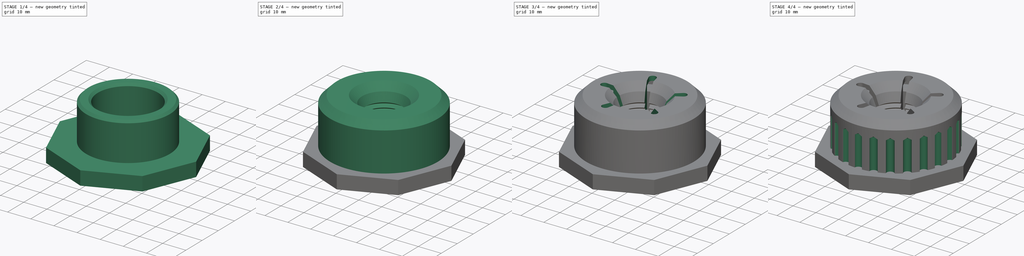
[diagram: build sequence overview — one tinted view per stage of 4, left to right]
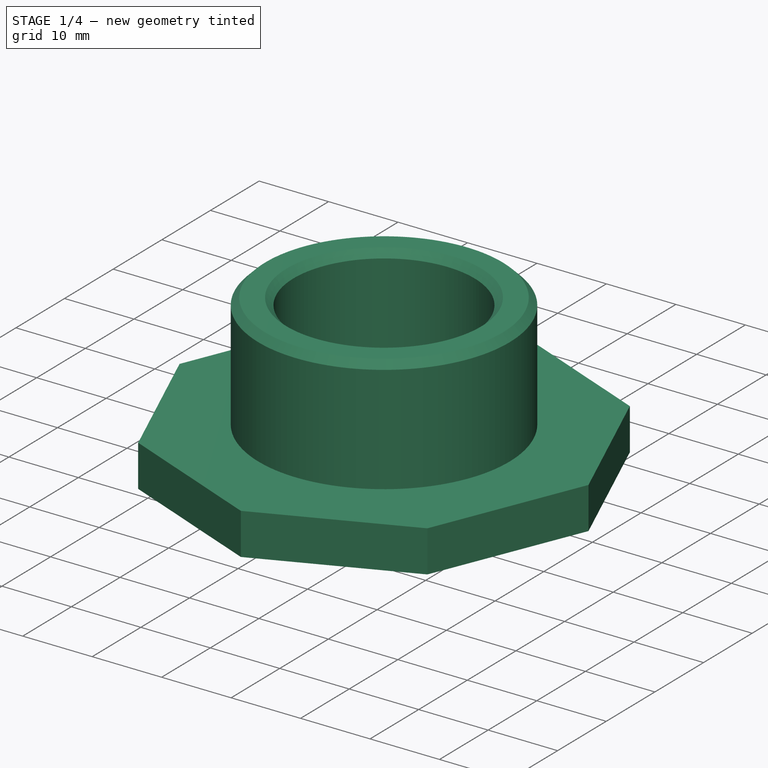
[diagram: stage 1 of 4 — iso view after this stage's code; geometry added in this stage tinted green]
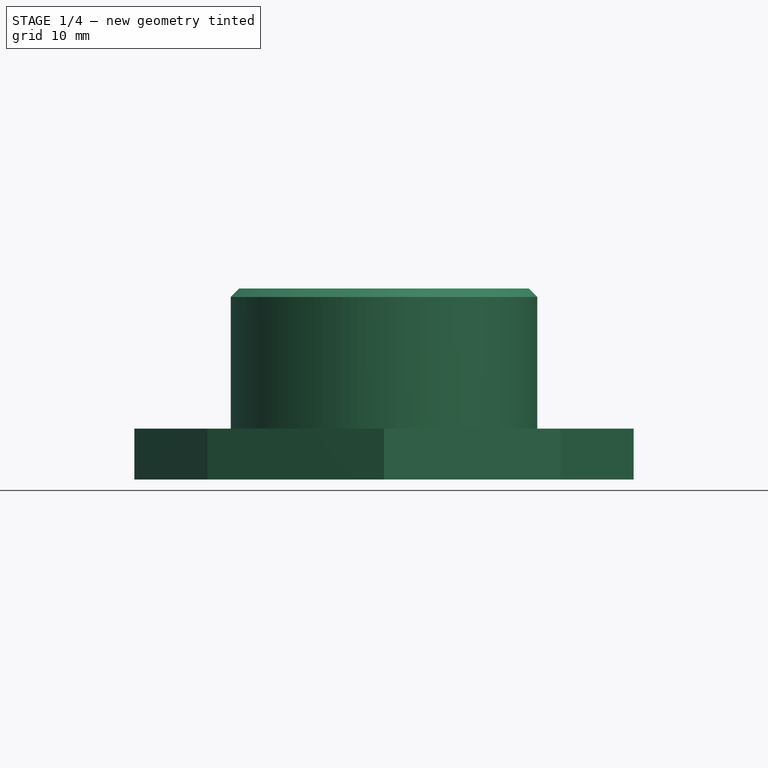
[diagram: stage 1 of 4 — front view after this stage's code; geometry added in this stage tinted green]
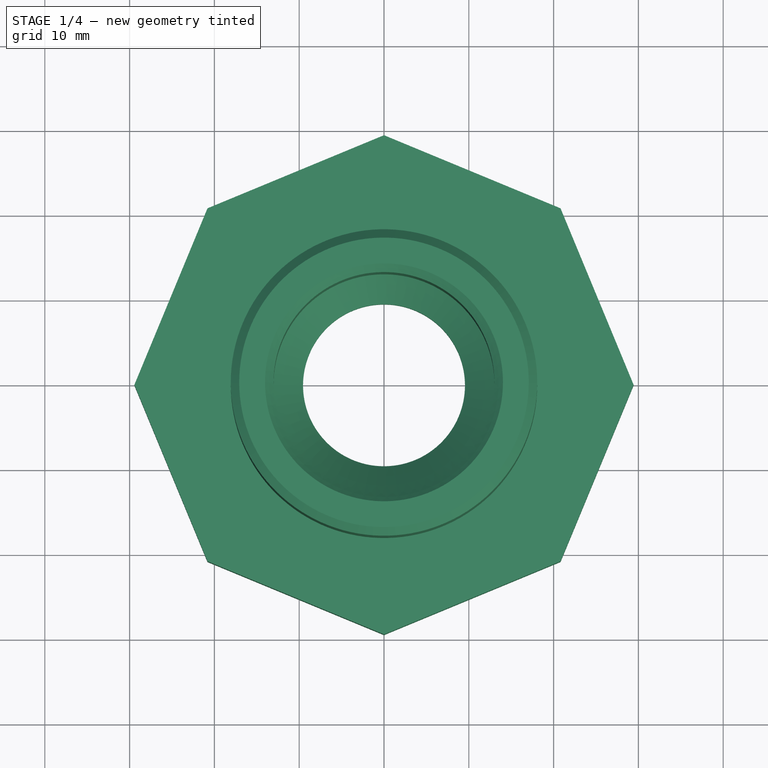
[diagram: stage 1 of 4 — top view after this stage's code; geometry added in this stage tinted green]
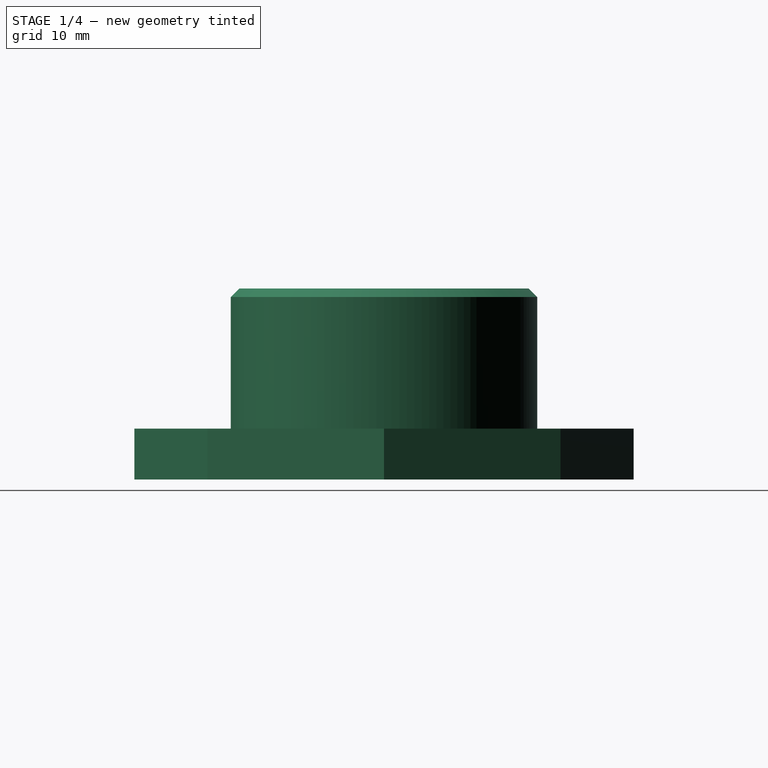
[diagram: stage 1 of 4 — right view after this stage's code; geometry added in this stage tinted green]
FCSTD DOCUMENT  (FreeCAD 2023.131R26244 +5365 (Git))
Label: Hose Clamps2
License: All rights reserved
LicenseURL: http://en.wikipedia.org/wiki/All_rights_reserved
objects: Sketcher::SketchObject×7, PartDesign::Revolution×2, PartDesign::PolarPattern×2, PartDesign::Body×2, Spreadsheet::Sheet×1, PartDesign::Pocket×1, PartDesign::Pad×1, PartDesign::Hole×1, PartDesign::SubtractiveHelix×1, PartDesign::AdditiveHelix×1
note: 43 computed .brp shape members not serialized (recipe doc carries the construction recipe); baked Part::Feature solids carry a one-line shape summary decoded from their .brp

FEATURE [Sketcher::SketchObject] Sketch002
  ArcFitTolerance = 1e-06
  AttachmentSupport = -> [XZ_Plane001]
  ExternalBSplineMaxDegree = 5
  ExternalBSplineTolerance = 0.0001
  FullyConstrained = true
  InternalTolerance = 1e-06
  InvalidShape = false
  MakeInternals = false
  MapMode = 5
  Placement = pos=(0,0,0) rot=(1,0,0;1.5708rad)
  Support = -> [XZ_Plane001]
  TreeRank = 27
  ValidateShape = true
  expr: Constraints[10] = <<Parameters>>.middle_thickness - 2 * <<Parameters>>.tolerance
  expr: Constraints[12] = <<Parameters>>.chamfer_depth + <<Parameters>>.thread_depth + <<Parameters>>.tolerance
  expr: Constraints[13] = <<Parameters>>.thickness * 3
  expr: Constraints[14] = <<Parameters>>.cap_height - <<Parameters>>.chamfer_depth - <<Parameters>>.tolerance
  expr: Constraints[19] = <<Parameters>>.outer_diameter / 2
  expr: Constraints[21] = <<Parameters>>.cap_outer_diameter / 2
  expr: Constraints[27] = <<Parameters>>.middle_thickness / 6
  expr: Constraints[28] = <<Parameters>>.middle_thickness / 6
  expr: Constraints[29] = <<Parameters>>.middle_thickness - 2 * <<Parameters>>.tolerance - <<Parameters>>.middle_thickness / 3
  sketch-geometry (10):
    g0: LineSegment StartX=-9.55 StartY=-6 StartZ=0 EndX=-23.55 EndY=-6 EndZ=0
    g1: LineSegment StartX=-13.0275 StartY=0 StartZ=0 EndX=-13.0275 EndY=15.5225 EndZ=0
    g2: LineSegment StartX=-14.0275 StartY=16.5225 StartZ=0 EndX=-17.0725 EndY=16.5225 EndZ=0
    g3: LineSegment StartX=-18.0725 StartY=15.5225 StartZ=0 EndX=-18.0725 EndY=0 EndZ=0
    g4: LineSegment StartX=-18.0725 StartY=0 StartZ=0 EndX=-23.55 EndY=0 EndZ=0
    g5: LineSegment StartX=-23.55 StartY=0 StartZ=0 EndX=-23.55 EndY=-6 EndZ=0
    g6: LineSegment StartX=-13.0275 StartY=0 StartZ=0 EndX=-9.55 EndY=-3.4775 EndZ=0
    g7: LineSegment StartX=-9.55 StartY=-3.4775 StartZ=0 EndX=-9.55 EndY=-6 EndZ=0
    g8: LineSegment StartX=-18.0725 StartY=15.5225 StartZ=0 EndX=-17.0725 EndY=16.5225 EndZ=0
    g9: LineSegment StartX=-13.0275 StartY=15.5225 StartZ=0 EndX=-14.0275 EndY=16.5225 EndZ=0
  constraints (30):
    c: Horizontal(g0)
    c: Vertical(g1)
    c: Horizontal(g2)
    c: PointOnObject(g3,g-1)
    c: Vertical(g3)
    c: Coincident(g4,g3)
    c: PointOnObject(g4,g-1)
    c: Coincident(g5,g4)
    c: Vertical(g5)
    c: Coincident(g0,g5)
    c: DistanceX(g3,g1) = 5.045
    c: Equal(g3,g1)
    c: DistanceX(g4,g3) = 5.4775
    c: DistanceY(g0,g4) = 6
    c: DistanceY(g-1,g2) = 16.5225
    c: Coincident(g6,g1)
    c: Coincident(g7,g6)
    c: Coincident(g7,g0)
    c: Vertical(g7)
    c: DistanceX(g0,g-1) = 9.55
    c: Angle(g6,g7) = 2.35619
    c: DistanceX(g0,g-1) = 23.55
    c: PointOnObject(g1,g-1)
    c: Coincident(g8,g3)
    c: Coincident(g8,g2)
    c: Coincident(g9,g1)
    c: Coincident(g9,g2)
    c: DistanceX(g2,g1) = 1
    c: DistanceY(g3,g2) = 1
    c: DistanceX(g2,g2) = 3.045
FEATURE [PartDesign::Revolution] Revolution001
  AddSubType = 0
  Angle = 360
  Axis = (0,-2e-16,1)
  Base = (0,0,0)
  ClaimChildren = false
  Fit = 0
  FitJoin = 0
  InnerFit = 0
  InnerFitJoin = 0
  InvalidShape = false
  Linearize = true
  NewSolid = false
  Profile = -> Sketch002
  ReferenceAxis = -> Sketch002 [V_Axis]
  Suppress = false
  TreeRank = 28
  ValidateShape = true
  _ProfileBasedVersion = 1
FEATURE [Sketcher::SketchObject] Sketch003
  ArcFitTolerance = 1e-06
  AttachmentSupport = -> [Revolution001]
  ExternalBSplineMaxDegree = 5
  ExternalBSplineTolerance = 0.0001
  FullyConstrained = true
  InternalTolerance = 1e-06
  InvalidShape = false
  MakeInternals = false
  MapMode = 5
  Placement = pos=(0,1.3e-15,-6) rot=(1,0,0;3.14159rad)
  Support = -> [Revolution001]
  TreeRank = 29
  ValidateShape = true
  expr: Constraints[25] = <<Parameters>>.cap_outer_diameter * 1.25
  expr: Constraints[27] = <<Parameters>>.outer_diameter * 2
  sketch-geometry (10):
    g0: LineSegment StartX=0 StartY=29.4375 StartZ=0 EndX=-20.8155 EndY=20.8155 EndZ=0
    g1: LineSegment StartX=-20.8155 StartY=20.8155 StartZ=0 EndX=-29.4375 EndY=-7.1e-15 EndZ=0
    g2: LineSegment StartX=-29.4375 StartY=-6.9e-15 StartZ=0 EndX=-20.8155 EndY=-20.8155 EndZ=0
    g3: LineSegment StartX=-20.8155 StartY=-20.8155 StartZ=0 EndX=7.1e-15 EndY=-29.4375 EndZ=0
    g4: LineSegment StartX=5.6e-15 StartY=-29.4375 StartZ=0 EndX=20.8155 EndY=-20.8155 EndZ=0
    g5: LineSegment StartX=20.8155 StartY=-20.8155 StartZ=0 EndX=29.4375 EndY=0 EndZ=0
    g6: LineSegment StartX=29.4375 StartY=7e-16 StartZ=0 EndX=20.8155 EndY=20.8155 EndZ=0
    g7: LineSegment StartX=20.8155 StartY=20.8155 StartZ=0 EndX=0 EndY=29.4375 EndZ=0
    g8: Circle [constr] CenterX=0 CenterY=0 CenterZ=0 NormalX=0 NormalY=0 NormalZ=1 AngleXU=0 Radius=29.4375
    g9: Circle CenterX=0 CenterY=0 CenterZ=0 NormalX=0 NormalY=0 NormalZ=1 AngleXU=0 Radius=19.1
  constraints (22):
    c: Coincident(g0,g1)
    c: Coincident(g1,g2)
    c: Coincident(g2,g3)
    c: Coincident(g3,g4)
    c: Coincident(g4,g5)
    c: Coincident(g5,g6)
    c: Coincident(g6,g7)
    c: Coincident(g7,g0)
    c: Equal(g0, g1-g7) x7
    c: PointOnObject(g0,g8)
    c: PointOnObject(g1,g8)
    c: PointOnObject(g2,g8)
    c: PointOnObject(g3,g8)
    c: PointOnObject(g4,g8)
    c: PointOnObject(g5,g8)
    c: PointOnObject(g6,g8)
    c: PointOnObject(g7,g8)
    c: Coincident(g8,g-1)
    c: PointOnObject(g7,g-2)
    c: Diameter(g8) = 58.875
    c: Coincident(g9,g8)
    c: Diameter(g9) = 38.2
FEATURE [PartDesign::Pad] Pad
  AddSubType = 0
  AlongSketchNormal = false
  AutoTaperInnerAngle = true
  BaseFeature = -> Revolution001
  CheckUpToFaceLimits = true
  ClaimChildren = false
  Direction = (0,2e-16,-1)
  Fit = 0
  FitJoin = 0
  InnerFit = 0
  InnerFitJoin = 0
  InvalidShape = false
  Length = 6
  Length2 = 100
  Linearize = true
  NewSolid = false
  Profile = -> Sketch003
  Reversed = true
  Suppress = false
  TaperInnerAngle = 0
  TaperInnerAngleRev = 0
  TreeRank = 30
  Type = 0
  ValidateShape = true
  _ProfileBasedVersion = 1
  expr: Length = <<Parameters>>.thickness * 3
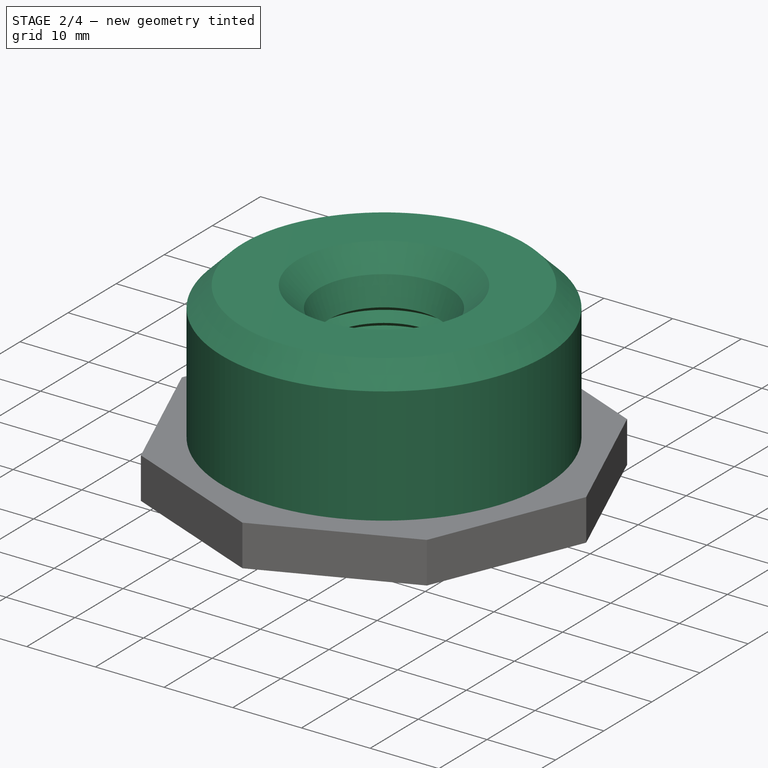
[diagram: stage 2 of 4 — iso view after this stage's code; geometry added in this stage tinted green]
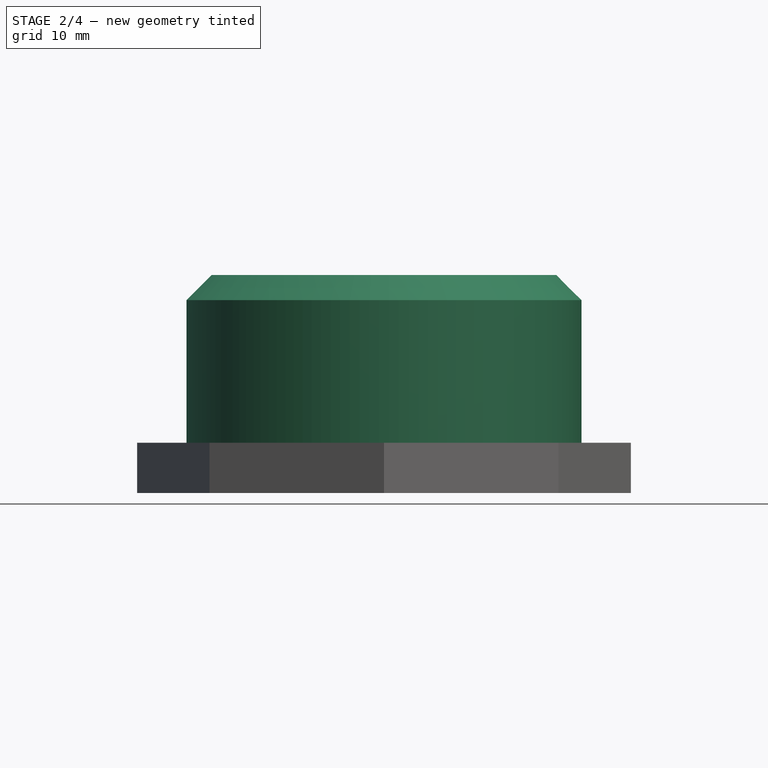
[diagram: stage 2 of 4 — front view after this stage's code; geometry added in this stage tinted green]
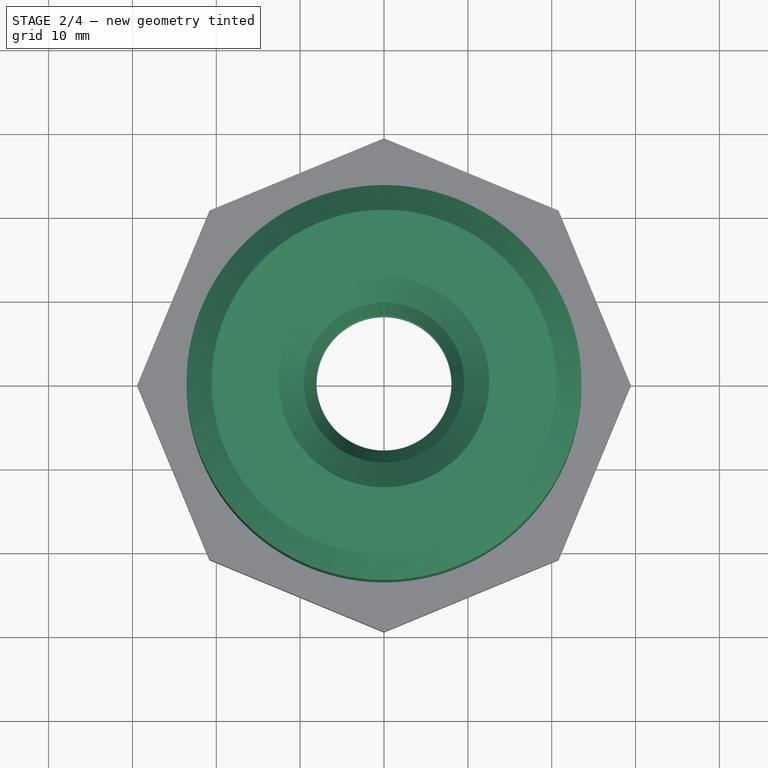
[diagram: stage 2 of 4 — top view after this stage's code; geometry added in this stage tinted green]
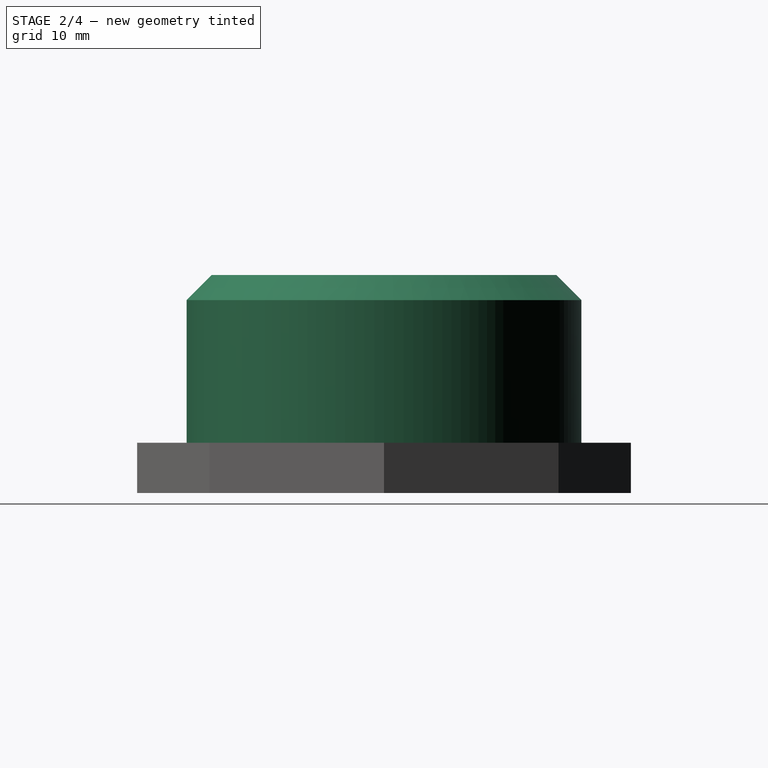
[diagram: stage 2 of 4 — right view after this stage's code; geometry added in this stage tinted green]
FEATURE [Spreadsheet::Sheet] Spreadsheet  label="Parameters"
  PythonMode = false
  ShowCells = 0
  TreeRank = 1
  cells = A1=Outer Diameter; B1(outer_diameter)=19.1; D1=The outer diameter of the tube; A2=Thickness; B2(thickness)=2; D2=Minimum thickness of parts; A4=Tolerance; B4(tolerance)==max(0.25, outer_diameter / 40); D4=The amount of space between parts that slide between each other.; A5=Cap Height; B5(cap_height)==ceil(outer_diameter); D5=How high the cap is. Higer caps can provide more clamping.; A6=Middle Thickness; B6(middle_thickness)==max(thickness, round(outer_diameter / 3)); D6=The thickness of the gap in the cap that allows the base to clamp onto the tube.; A7=Chamfer Angle; B7(chamfer_angle)=135; D7=The angle to use to create chamfers.; A8=Chamfer Depth; B8(chamfer_depth)==max(1, round(outer_diameter / 6)); D8=How big the chamfer will be.; A9=Tooth Depth; B9(tooth_depth)==round(outer_diameter / 6) / 2; D9=The depth of the teeth that grips the outside surface of the tube.; A10=Thread Pitch; B10(thread_pitch)==thread_depth * 1.25; D10=These are trapezoidal threads.; A11=Thread Angle; B11(thread_angle)=15; D11=The angle of the size of the trapezoid.; A12=Thread Depth; B12(thread_depth)==max(1.5, cap_height / 10); D12=How deep the threads mesh.; A13=Thread Clearance; B13(thread_clearance)==thread_depth / 10; D13=The amount of clearance between mating threads.; A14=Thread Height; B14(thread_length)==cap_height / 3 * 2; D14=The total length of the threading; A15=Cap Outer Diameter; B15(cap_outer_diameter)==outer_diameter + 4 * chamfer_depth + 2 * middle_thickness + 2 * thread_depth; D15=Calcualted based on the above specs.; B18=Tolerance; C18=Outer Diameter; D18=Cap Height; E18=Mid Thickness; F18=Chamfer Depth; G18=Tooth Depth; H18=Thread Pitch; I18=Thread Depth; J18=Thread Clearance; K18=Thread Height; A19=1/2" ID Tube; B19=0.5; C19=19.1; D19=20; E19=6; F19=3; G19=1.5; H19=2.5; I19=2; J19=0.2; K19=12; A20=3/8" ID Tube; B20=0.5; C20=13.025; D20=14; E20=4; F20=2; G20=1; H20=1.75; I20=1.4; J20=0.14; K20=7; A21=1/4" ID Tube; B21=0.5; C21=10.35; D21=11; E21=3; F21=2; G21=1; H21=1.38; I21=1.1; J21=0.11; K21=5.5; A22=Calculated; B22==max(0.25, C22 / 40); C22=4; D22==ceil(C22); E22==max(thickness, round(C22 / 3)); F22==max(1, round(C22 / 6)); G22==round(C22 / 6) / 2; H22==I22 * 1.25; I22==max(1.5, D22 / 10); J22==I22 / 10; K22==D22 / 2
FEATURE [Sketcher::SketchObject] Sketch
  ArcFitTolerance = 1e-06
  AttachmentSupport = -> [XZ_Plane]
  ExternalBSplineMaxDegree = 5
  ExternalBSplineTolerance = 0.0001
  FullyConstrained = true
  InternalTolerance = 1e-06
  InvalidShape = false
  MakeInternals = false
  MapMode = 5
  Placement = pos=(0,0,0) rot=(1,0,0;1.5708rad)
  Support = -> [XZ_Plane]
  TreeRank = 12
  ValidateShape = true
  expr: Constraints[13] = <<Parameters>>.chamfer_depth
  expr: Constraints[14] = <<Parameters>>.outer_diameter / 2
  expr: Constraints[16] = <<Parameters>>.thickness
  expr: Constraints[17] = <<Parameters>>.middle_thickness
  expr: Constraints[1] = <<Parameters>>.chamfer_depth
  expr: Constraints[23] = <<Parameters>>.thread_depth
  expr: Constraints[24] = <<Parameters>>.chamfer_angle
  expr: Constraints[25] = <<Parameters>>.chamfer_angle
  expr: Constraints[2] = <<Parameters>>.cap_height
  expr: Constraints[35] = <<Parameters>>.chamfer_angle
  expr: Constraints[36] = <<Parameters>>.tooth_depth
  expr: Constraints[3] = <<Parameters>>.chamfer_depth
  expr: Constraints[42] = <<Parameters>>.tooth_depth
  expr: Constraints[43] = <<Parameters>>.tooth_depth
  expr: Constraints[44] = <<Parameters>>.tooth_depth
  expr: Constraints[45] = <<Parameters>>.tooth_depth
  expr: Constraints[55] = <<Parameters>>.chamfer_angle
  expr: Constraints[79] = <<Parameters>>.tooth_depth
  expr: Constraints[80] = <<Parameters>>.tooth_depth
  expr: Constraints[81] = <<Parameters>>.tooth_depth
  expr: Constraints[82] = <<Parameters>>.tooth_depth
  expr: Constraints[83] = <<Parameters>>.cap_height / 3 * 2
  expr: Constraints[84] = <<Parameters>>.tooth_depth
  expr: Constraints[87] = <<Parameters>>.tooth_depth
  expr: Constraints[9] = <<Parameters>>.chamfer_depth
  sketch-geometry (30):
    g0: LineSegment StartX=-23.55 StartY=17 StartZ=0 EndX=-20.55 EndY=20 EndZ=0
    g1: LineSegment StartX=-21.55 StartY=0 StartZ=0 EndX=-18.55 EndY=3 EndZ=0
    g2: LineSegment StartX=-18.55 StartY=3 StartZ=0 EndX=-18.55 EndY=18 EndZ=0
    g3: LineSegment StartX=-12.55 StartY=18 StartZ=0 EndX=-12.55 EndY=3 EndZ=0
    g4: LineSegment StartX=-12.55 StartY=3 StartZ=0 EndX=-9.55 EndY=0 EndZ=0
    g5: LineSegment StartX=-9.55 StartY=17 StartZ=0 EndX=-12.55 EndY=20 EndZ=0
    g6: LineSegment StartX=-12.55 StartY=20 StartZ=0 EndX=-20.55 EndY=20 EndZ=0
    g7: LineSegment StartX=-18.55 StartY=18 StartZ=0 EndX=-12.55 EndY=18 EndZ=0
    g8: LineSegment StartX=-21.55 StartY=0 StartZ=0 EndX=-23.55 EndY=0 EndZ=0
    g9: LineSegment StartX=-23.55 StartY=0 StartZ=0 EndX=-23.55 EndY=17 EndZ=0
    g10: LineSegment StartX=-9.55 StartY=0 StartZ=0 EndX=-8.05 EndY=1.02564 EndZ=0
    g11: LineSegment StartX=-8.05 StartY=1.02564 StartZ=0 EndX=-9.55 EndY=-2e-16 EndZ=0
    g12: LineSegment StartX=-9.55 StartY=-3e-16 StartZ=0 EndX=-8.05 EndY=1.02564 EndZ=0
    g13: LineSegment StartX=-8.05 StartY=1.02564 StartZ=0 EndX=-9.55 EndY=2.05128 EndZ=0
    g14: LineSegment StartX=-9.55 StartY=2.05128 StartZ=0 EndX=-8.05 EndY=3.07692 EndZ=0
    g15: LineSegment StartX=-8.05 StartY=3.07692 StartZ=0 EndX=-9.55 EndY=4.10256 EndZ=0
    g16: LineSegment StartX=-9.55 StartY=4.10256 StartZ=0 EndX=-8.05 EndY=5.12821 EndZ=0
    g17: LineSegment StartX=-8.05 StartY=5.12821 StartZ=0 EndX=-9.55 EndY=6.15385 EndZ=0
    g18: LineSegment StartX=-9.55 StartY=6.15385 StartZ=0 EndX=-8.05 EndY=7.17949 EndZ=0
    g19: LineSegment StartX=-8.05 StartY=7.17949 StartZ=0 EndX=-9.55 EndY=8.20513 EndZ=0
    g20: LineSegment StartX=-9.55 StartY=8.20513 StartZ=0 EndX=-8.05 EndY=9.23077 EndZ=0
    g21: LineSegment StartX=-8.05 StartY=9.23077 StartZ=0 EndX=-9.55 EndY=10.2564 EndZ=0
    g22: LineSegment StartX=-9.55 StartY=10.2564 StartZ=0 EndX=-8.05 EndY=11.2821 EndZ=0
    g23: LineSegment StartX=-8.05 StartY=11.2821 StartZ=0 EndX=-9.55 EndY=12.3077 EndZ=0
    g24: LineSegment StartX=-9.55 StartY=12.3077 StartZ=0 EndX=-8.05 EndY=13.3333 EndZ=0
    g25: LineSegment StartX=-8.05 StartY=13.3333 StartZ=0 EndX=-9.55 EndY=12.3077 EndZ=0
    g26: LineSegment StartX=-9.55 StartY=12.3077 StartZ=0 EndX=-8.05 EndY=11.2821 EndZ=0
    g27: LineSegment StartX=-8.05 StartY=11.2821 StartZ=0 EndX=-9.55 EndY=12.3077 EndZ=0
    g28: LineSegment StartX=-9.55 StartY=12.3077 StartZ=0 EndX=-8.05 EndY=13.3333 EndZ=0
    g29: LineSegment StartX=-9.55 StartY=17 StartZ=0 EndX=-8.05 EndY=13.3333 EndZ=0
  constraints (84):
    c: PointOnObject(g1,g-1)
    c: DistanceY(g0,g0) = 3
    c: DistanceY(g-1,g0) = 20
    c: DistanceY(g1,g1) = 3
    c: Coincident(g2,g1)
    c: Vertical(g2)
    c: Vertical(g3)
    c: Coincident(g4,g3)
    c: PointOnObject(g4,g-1)
    c: DistanceY(g4,g3) = 3
    c: Coincident(g6,g5)
    c: Coincident(g6,g0)
    c: Horizontal(g6)
    c: DistanceY(g5,g5) = 3
    c: DistanceX(g4,g-1) = 9.55
    c: Horizontal(g7)
    c: DistanceY(g7,g5) = 2
    c: DistanceX(g1,g3) = 6
    c: Coincident(g8,g1)
    c: Horizontal(g8)
    c: Coincident(g9,g8)
    c: Vertical(g9)
    c: Coincident(g0,g9)
    c: DistanceX(g8,g1) = 2
    c: Angle(g9,g0) = 2.35619
    c: Angle(g2,g1) = 2.35619
    c: Coincident(g11,g10)
    c: Coincident(g12,g11)
    c: Coincident(g13,g12)
    c: Coincident(g14,g13)
    c: Coincident(g15,g14)
    c: Coincident(g16,g15)
    c: Coincident(g17,g16)
    c: Coincident(g18,g17)
    c: Coincident(g19,g18)
    c: Angle(g6,g5) = 2.35619
    c: DistanceX(g19,g18) = 1.5
    c: DistanceX(g5,g4) = 0
    c: DistanceX(g17,g19) = 0
    c: DistanceX(g17,g15) = 0
    c: DistanceX(g15,g13) = 0
    c: DistanceX(g13,g11) = 0
    c: DistanceX(g17,g16) = 1.5
    c: DistanceX(g15,g14) = 1.5
    c: DistanceX(g13,g12) = 1.5
    c: DistanceX(g11,g10) = 1.5
    c: Equal(g19,g18)
    c: Equal(g19,g17)
    c: Equal(g19,g16)
    c: Equal(g19,g15)
    c: Equal(g19,g14)
    c: Equal(g19,g13)
    c: Equal(g19,g12)
    c: Equal(g19,g11)
    c: Equal(g19,g10)
    c: Angle(g4,g3) = 2.35619
    c: Coincident(g10,g4)
    c: Coincident(g20,g19)
    c: Coincident(g21,g20)
    c: Coincident(g22,g21)
    c: Coincident(g23,g22)
    c: Coincident(g24,g23)
    c: Coincident(g25,g24)
    c: Coincident(g26,g25)
    c: Coincident(g27,g26)
    c: Coincident(g28,g27)
    c: Equal(g21, g22-g28) x7
    c: Equal(g21,g20)
    c: Equal(g20,g19)
    c: DistanceX(g19,g21) = 0
    c: DistanceX(g21,g23) = 0
    c: DistanceX(g23,g25) = 0
    c: DistanceX(g27,g25) = 0
    c: DistanceX(g27,g26) = 1.5
    c: DistanceX(g25,g24) = 1.5
    c: DistanceX(g23,g22) = 1.5
    c: DistanceX(g21,g20) = 1.5
    c: DistanceY(g-1,g28) = 13.3333
    c: DistanceX(g27,g28) = 1.5
    c: Coincident(g29,g5)
    c: Coincident(g29,g28)
    c: DistanceX(g4,g10) = 1.5
    c: Coincident(g7,g2)
    c: Coincident(g7,g3)
FEATURE [PartDesign::Revolution] Revolution
  AddSubType = 0
  Angle = 360
  Axis = (0,-2e-16,1)
  Base = (0,0,0)
  ClaimChildren = false
  Fit = 0
  FitJoin = 0
  InnerFit = 0
  InnerFitJoin = 0
  InvalidShape = false
  Linearize = true
  NewSolid = false
  Profile = -> Sketch
  ReferenceAxis = -> Sketch [V_Axis]
  Suppress = false
  TreeRank = 13
  ValidateShape = true
  _ProfileBasedVersion = 1
FEATURE [PartDesign::Body] Body  label="Cap"
  AutoGroupSolids = false
  ClaimAllChildren = false
  ExportMode = 0
  Group = -> [Sketch,Revolution,Sketch001,Pocket,PolarPattern,Sketch004,Hole,PolarPattern001,Sketch005,Helix]
  InvalidShape = false
  Origin = -> Origin
  Tip = -> Helix
  TreeRank = 11
  ValidateShape = true
  _ExportChildren = -> [Revolution,Pocket,PolarPattern,Hole,PolarPattern001,Helix]
  _GroupVersion = 1
FEATURE [Sketcher::SketchObject] Sketch006
  ArcFitTolerance = 1e-06
  AttachmentSupport = -> [XZ_Plane001]
  ExternalBSplineMaxDegree = 5
  ExternalBSplineTolerance = 0.0001
  FullyConstrained = true
  InternalTolerance = 1e-06
  InvalidShape = false
  MakeInternals = false
  MapMode = 5
  Placement = pos=(0,0,0) rot=(1,0,0;1.5708rad)
  Support = -> [XZ_Plane001]
  TreeRank = 36
  ValidateShape = true
  expr: Constraints[10] = 90 - <<Parameters>>.thread_angle
  expr: Constraints[11] = 90 - <<Parameters>>.thread_angle
  expr: Constraints[3] = <<Parameters>>.thread_pitch - <<Parameters>>.thread_clearance
  expr: Constraints[4] = <<Parameters>>.thread_depth - <<Parameters>>.thread_clearance
  expr: Constraints[5] = <<Parameters>>.outer_diameter / 2 + <<Parameters>>.middle_thickness + <<Parameters>>.chamfer_depth - 2 * <<Parameters>>.tolerance - 0.1
  expr: Constraints[6] = <<Parameters>>.thread_pitch + <<Parameters>>.thread_clearance / 2
  expr: Constraints[7] = <<Parameters>>.thread_depth - <<Parameters>>.thread_clearance
  sketch-geometry (4):
    g0: LineSegment StartX=-17.495 StartY=4.9 StartZ=0 EndX=-17.495 EndY=2.6 EndZ=0
    g1: LineSegment StartX=-17.495 StartY=2.6 StartZ=0 EndX=-19.295 EndY=3.08231 EndZ=0
    g2: LineSegment StartX=-17.495 StartY=4.9 StartZ=0 EndX=-19.295 EndY=4.41769 EndZ=0
    g3: LineSegment StartX=-19.295 StartY=4.41769 StartZ=0 EndX=-19.295 EndY=3.08231 EndZ=0
  constraints (12):
    c: Vertical(g0)
    c: Coincident(g1,g0)
    c: Coincident(g2,g0)
    c: DistanceY(g0,g0) = 2.3
    c: DistanceX(g2,g0) = 1.8
    c: DistanceX(g0,g-1) = 17.495
    c: DistanceY(g-1,g0) = 2.6
    c: DistanceX(g1,g0) = 1.8
    c: Coincident(g3,g2)
    c: Coincident(g3,g1)
    c: Angle(g0,g1) = 1.309
    c: Angle(g2,g0) = 1.309
FEATURE [PartDesign::AdditiveHelix] Helix001
  AddSubType = 0
  Angle = 0
  Axis = (0,-2e-16,1)
  Base = (0,0,0)
  BaseFeature = -> Pad
  ClaimChildren = false
  Fit = 0
  FitJoin = 0
  Growth = 0
  HasBeenEdited = true
  Height = 5
  InnerFit = 0
  InnerFitJoin = 0
  InvalidShape = false
  LeftHanded = false
  Linearize = true
  Mode = 1
  NewSolid = false
  Outside = false
  Pitch = 5
  Profile = -> Sketch006
  ReferenceAxis = -> Sketch006 [V_Axis]
  Suppress = false
  TreeRank = 37
  Turns = 1
  ValidateShape = true
  _ProfileBasedVersion = 1
  expr: Height = <<Parameters>>.thread_length / 2.5
  expr: Pitch = <<Parameters>>.thread_pitch * 2
FEATURE [PartDesign::Body] Body001  label="Base"
  AutoGroupSolids = false
  ClaimAllChildren = false
  ExportMode = 0
  Group = -> [Sketch002,Revolution001,Sketch003,Pad,Sketch006,Helix001]
  InvalidShape = false
  Origin = -> Origin001
  Tip = -> Helix001
  TreeRank = 26
  ValidateShape = true
  _ExportChildren = -> [Revolution001,Pad,Helix001]
  _GroupVersion = 1
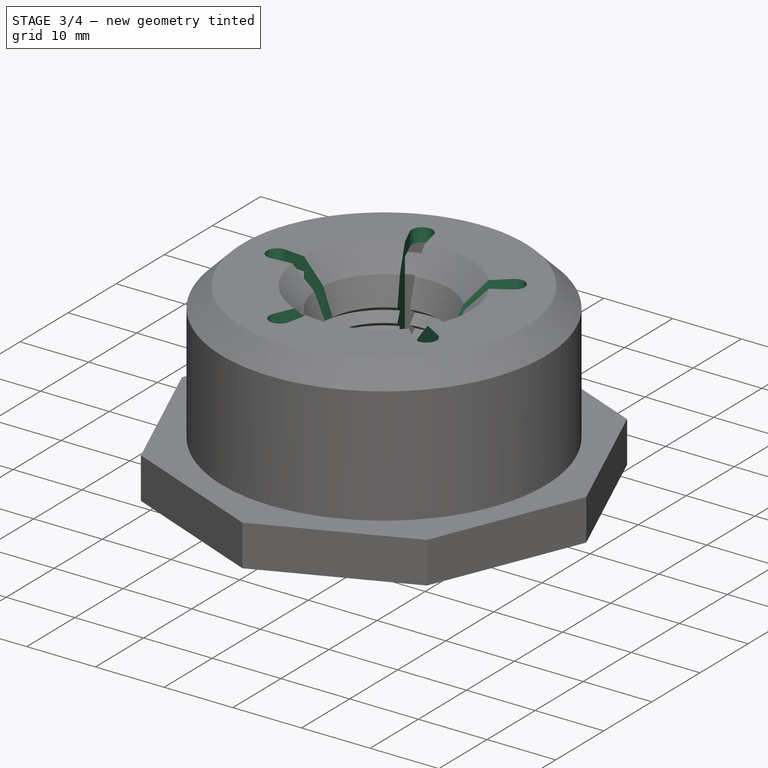
[diagram: stage 3 of 4 — iso view after this stage's code; geometry added in this stage tinted green]
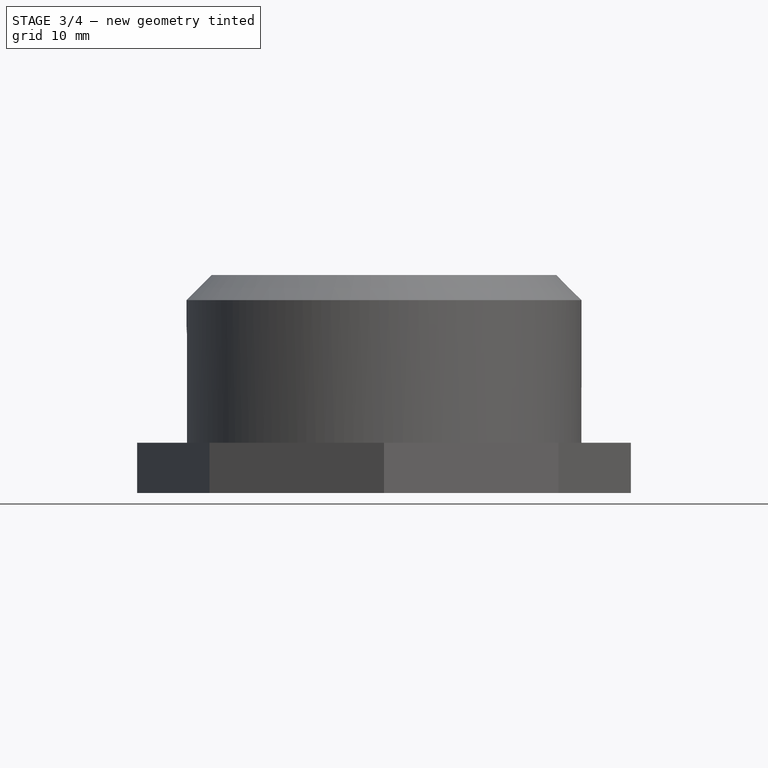
[diagram: stage 3 of 4 — front view after this stage's code; geometry added in this stage tinted green]
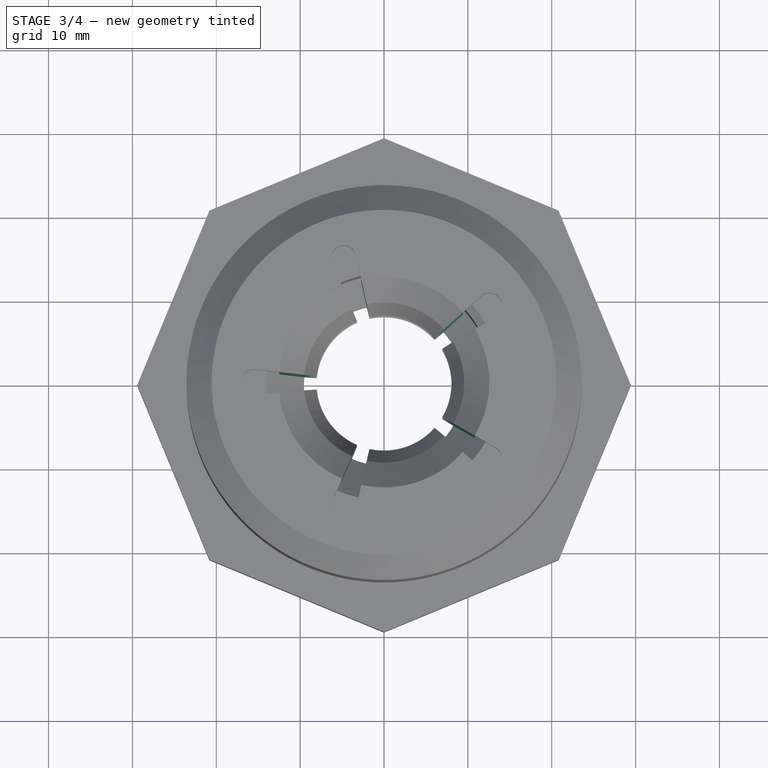
[diagram: stage 3 of 4 — top view after this stage's code; geometry added in this stage tinted green]
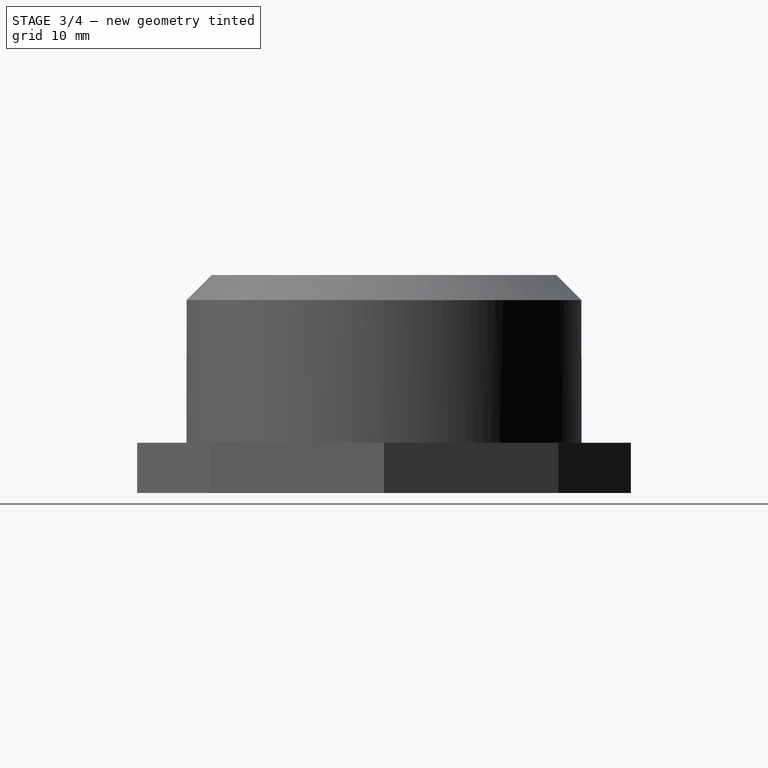
[diagram: stage 3 of 4 — right view after this stage's code; geometry added in this stage tinted green]
FEATURE [Sketcher::SketchObject] Sketch001
  ArcFitTolerance = 1e-06
  AttachmentSupport = -> [XY_Plane001]
  ExternalBSplineMaxDegree = 5
  ExternalBSplineTolerance = 0.0001
  FullyConstrained = true
  InternalTolerance = 1e-06
  InvalidShape = false
  MakeInternals = false
  MapMode = 5
  Support = -> [XY_Plane001]
  TreeRank = 14
  ValidateShape = true
  expr: Constraints[1] = <<Parameters>>.outer_diameter / 2 + <<Parameters>>.chamfer_depth + <<Parameters>>.middle_thickness / 2
  expr: Constraints[2] = <<Parameters>>.middle_thickness * 0.5
  sketch-geometry (3):
    g0: ArcOfCircle CenterX=-15.55 CenterY=0 CenterZ=0 NormalX=0 NormalY=0 NormalZ=1 AngleXU=0 Radius=1.5 StartAngle=1.47418 EndAngle=4.809
    g1: LineSegment StartX=-15.4053 StartY=1.493 StartZ=0 EndX=0 EndY=0 EndZ=0
    g2: LineSegment StartX=-15.4053 StartY=-1.493 StartZ=0 EndX=0 EndY=0 EndZ=0
  constraints (8):
    c: PointOnObject(g0,g-1)
    c: DistanceX(g0,g-1) = 15.55
    c: Diameter(g0) = 3
    c: Coincident(g1,g-1)
    c: Coincident(g2,g1)
    c: Equal(g2,g1)
    c: Tangent(g0,g2) = -1.5708
    c: Coincident(g0,g1)
FEATURE [PartDesign::Pocket] Pocket
  AddSubType = 1
  AutoTaperInnerAngle = true
  BaseFeature = -> Revolution
  CheckUpToFaceLimits = true
  ClaimChildren = false
  Fit = 0
  FitJoin = 0
  InnerFit = 0
  InnerFitJoin = 0
  InvalidShape = false
  Length = 20
  Length2 = 20
  Linearize = true
  NewSolid = false
  Profile = -> Sketch001
  Suppress = false
  TaperInnerAngle = 0
  TaperInnerAngleRev = 0
  TreeRank = 15
  Type = 4
  ValidateShape = true
  _ProfileBasedVersion = 1
  _Version = 1
  expr: Length = <<Parameters>>.cap_height
  expr: Length2 = <<Parameters>>.cap_height
FEATURE [PartDesign::PolarPattern] PolarPattern
  AddSubType = 0
  Angle = 360
  Axis = -> Sketch001 [N_Axis]
  BaseFeature = -> Pocket
  CopyShape = false
  InvalidShape = false
  NewSolid = false
  Occurrences = 5
  OriginalSubs = -> [Pocket]
  Originals = -> [Pocket]
  ParallelTransform = true
  SubTransform = true
  Suppress = false
  TreeRank = 16
  ValidateShape = true
  _Version = 3
FEATURE [Sketcher::SketchObject] Sketch004
  ArcFitTolerance = 1e-06
  AttachmentSupport = -> [XY_Plane]
  ExternalBSplineMaxDegree = 5
  ExternalBSplineTolerance = 0.0001
  FullyConstrained = true
  InternalTolerance = 1e-06
  InvalidShape = false
  MakeInternals = false
  MapMode = 5
  Support = -> [XY_Plane]
  TreeRank = 31
  ValidateShape = true
  expr: Constraints[1] = <<Parameters>>.cap_outer_diameter / 2
  expr: Constraints[2] = <<Parameters>>.cap_outer_diameter / 10
  sketch-geometry (1):
    g0: Circle CenterX=-23.55 CenterY=0 CenterZ=0 NormalX=0 NormalY=0 NormalZ=1 AngleXU=0 Radius=2.355
  constraints (3):
    c: PointOnObject(g0,g-1)
    c: DistanceX(g0,g-1) = 23.55
    c: Diameter(g0) = 4.71
FEATURE [PartDesign::Hole] Hole
  AddSubType = 1
  BaseFeature = -> PolarPattern
  ClaimChildren = false
  CustomThreadClearance = 0
  Depth = 13
  DepthType = 0
  Diameter = 3.14
  DrillForDepth = false
  DrillPoint = 1
  DrillPointAngle = 118
  Fit = 0
  FitJoin = 0
  HoleCutCountersinkAngle = 90
  HoleCutCustomValues = false
  HoleCutDepth = 0
  HoleCutDiameter = 6.1
  HoleCutType = 0
  InnerFit = 0
  InnerFitJoin = 0
  InvalidShape = false
  Linearize = true
  ModelThread = false
  NewSolid = false
  Profile = -> Sketch004
  Reversed = true
  Suppress = false
  Tapered = false
  TaperedAngle = 90
  ThreadClass = 0
  ThreadDepth = 13
  ThreadDepthType = 0
  ThreadDirection = 0
  ThreadFit = 0
  ThreadSize = 0
  ThreadType = 0
  Threaded = false
  TreeRank = 32
  UseCustomThreadClearance = false
  ValidateShape = true
  _ProfileBasedVersion = 1
  expr: Depth = <<Parameters>>.cap_height * 0.65
  expr: Diameter = <<Parameters>>.cap_outer_diameter / 15
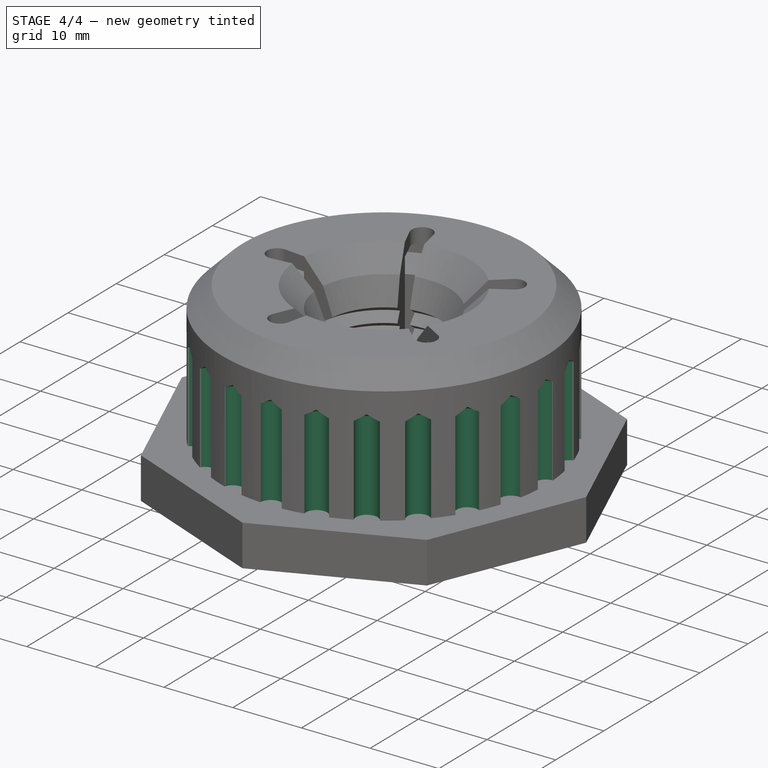
[diagram: stage 4 of 4 — iso view after this stage's code; geometry added in this stage tinted green]
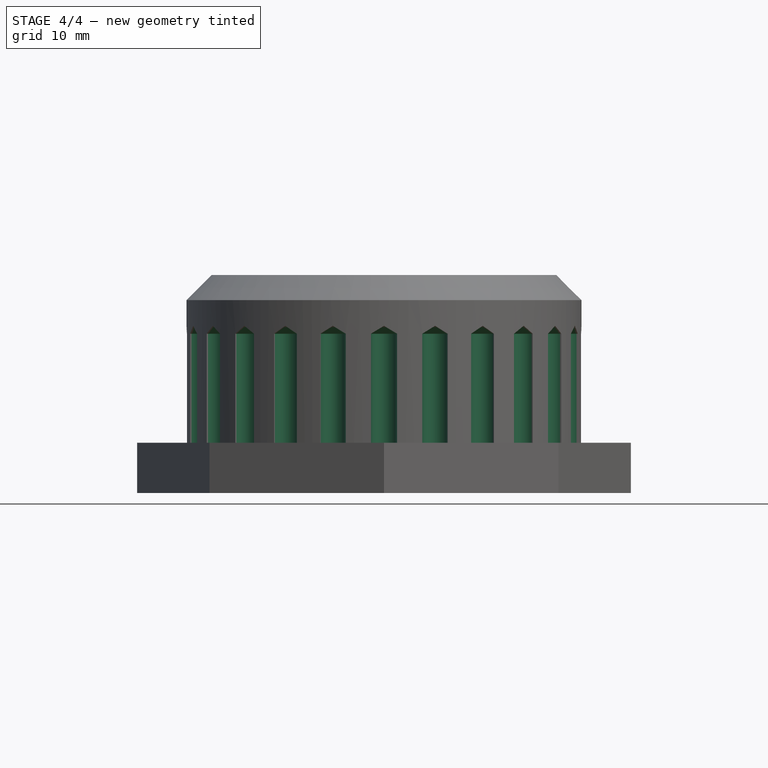
[diagram: stage 4 of 4 — front view after this stage's code; geometry added in this stage tinted green]
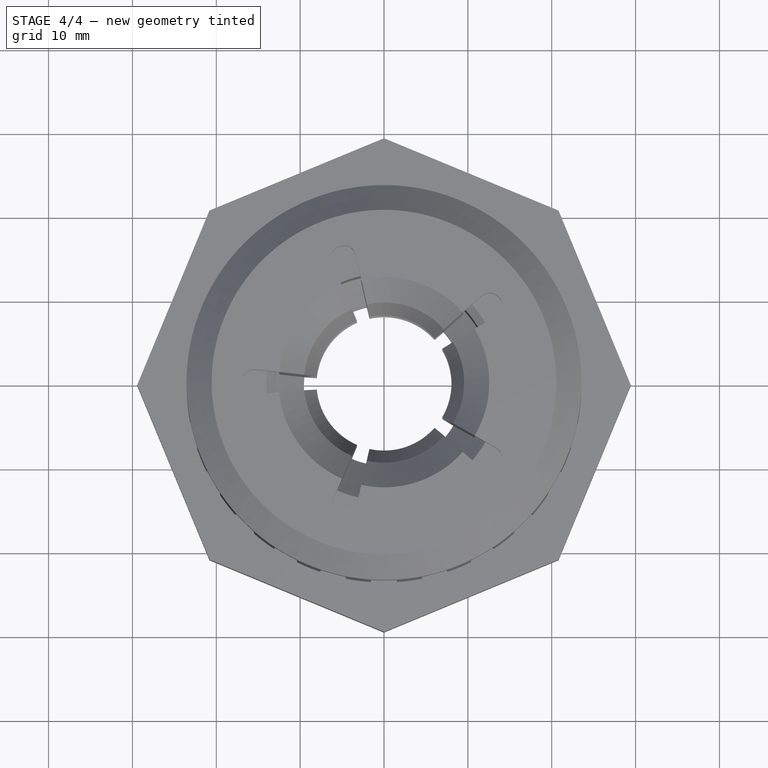
[diagram: stage 4 of 4 — top view after this stage's code; geometry added in this stage tinted green]
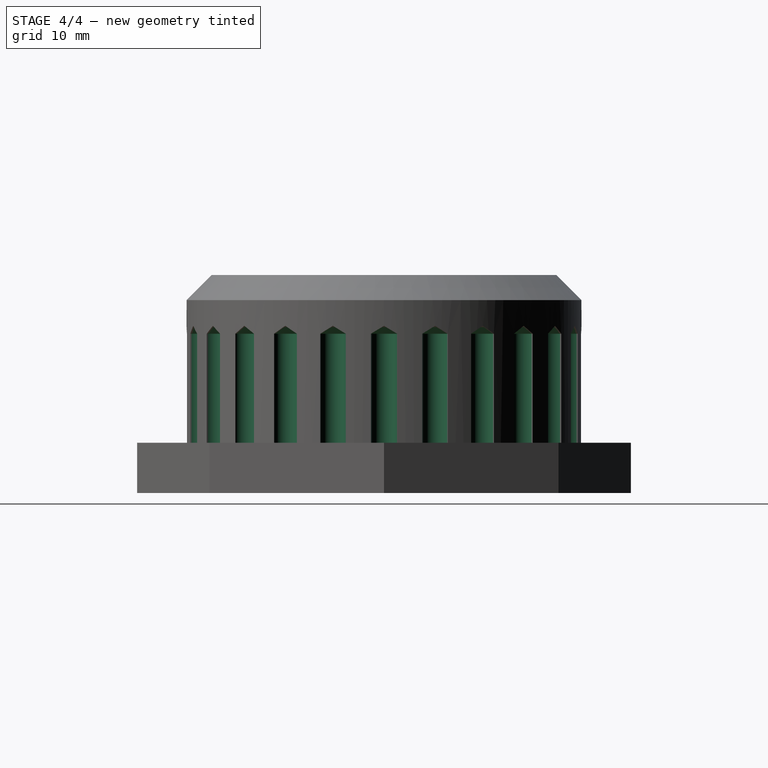
[diagram: stage 4 of 4 — right view after this stage's code; geometry added in this stage tinted green]
FEATURE [PartDesign::PolarPattern] PolarPattern001
  AddSubType = 0
  Angle = 360
  Axis = -> Sketch004 [N_Axis]
  BaseFeature = -> Hole
  CopyShape = false
  InvalidShape = false
  NewSolid = false
  Occurrences = 24
  OriginalSubs = -> [Hole]
  Originals = -> [Hole]
  ParallelTransform = true
  SubTransform = true
  Suppress = false
  TreeRank = 33
  ValidateShape = true
  _Version = 3
FEATURE [Sketcher::SketchObject] Sketch005
  ArcFitTolerance = 1e-06
  AttachmentSupport = -> [XZ_Plane]
  ExternalBSplineMaxDegree = 5
  ExternalBSplineTolerance = 0.0001
  FullyConstrained = true
  InternalTolerance = 1e-06
  InvalidShape = false
  MakeInternals = false
  MapMode = 5
  Placement = pos=(0,0,0) rot=(1,0,0;1.5708rad)
  Support = -> [XZ_Plane]
  TreeRank = 34
  ValidateShape = true
  expr: Constraints[11] = <<Parameters>>.cap_outer_diameter / 2 - 2 * <<Parameters>>.tooth_depth - <<Parameters>>.chamfer_depth
  expr: Constraints[7] = 90 - <<Parameters>>.thread_angle
  expr: Constraints[8] = <<Parameters>>.thread_pitch
  expr: Constraints[9] = <<Parameters>>.thread_depth
  sketch-geometry (4):
    g0: LineSegment StartX=-17.55 StartY=0 StartZ=0 EndX=-17.55 EndY=-2.5 EndZ=0
    g1: LineSegment StartX=-17.55 StartY=-2.5 StartZ=0 EndX=-19.55 EndY=-1.9641 EndZ=0
    g2: LineSegment StartX=-17.55 StartY=0 StartZ=0 EndX=-19.55 EndY=-0.535898 EndZ=0
    g3: LineSegment StartX=-19.55 StartY=-0.535898 StartZ=0 EndX=-19.55 EndY=-1.9641 EndZ=0
  constraints (12):
    c: Vertical(g0)
    c: Coincident(g1,g0)
    c: Coincident(g2,g0)
    c: Coincident(g3,g2)
    c: Coincident(g3,g1)
    c: Vertical(g3)
    c: Equal(g2,g1)
    c: Angle(g0,g1) = 1.309
    c: DistanceY(g0,g0) = 2.5
    c: DistanceX(g2,g0) = 2
    c: PointOnObject(g0,g-1)
    c: DistanceX(g0,g-1) = 17.55
FEATURE [PartDesign::SubtractiveHelix] Helix
  AddSubType = 1
  Angle = 0
  Axis = (0,-2e-16,1)
  Base = (0,0,0)
  BaseFeature = -> PolarPattern001
  ClaimChildren = false
  Fit = 0
  FitJoin = 0
  Growth = 0
  HasBeenEdited = true
  Height = 10
  InnerFit = 0
  InnerFitJoin = 0
  InvalidShape = false
  LeftHanded = false
  Linearize = true
  Mode = 1
  NewSolid = false
  Outside = false
  Pitch = 5
  Profile = -> Sketch005
  ReferenceAxis = -> Sketch005 [V_Axis]
  Suppress = false
  TreeRank = 35
  Turns = 2
  ValidateShape = true
  _ProfileBasedVersion = 1
  expr: Height = <<Parameters>>.thread_length
  expr: Pitch = <<Parameters>>.thread_pitch * 2
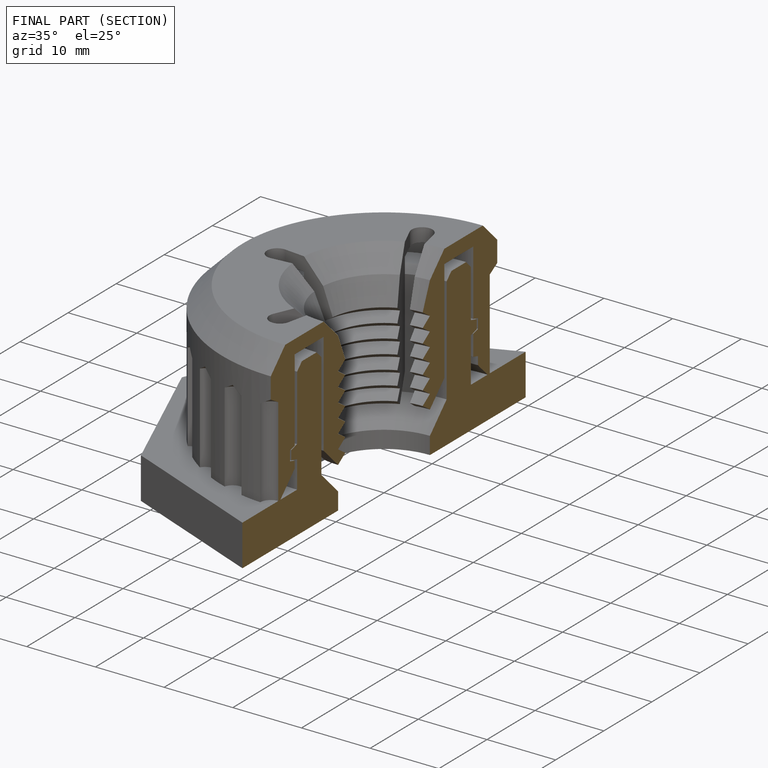
[diagram: finished part — half-section view (interior)]
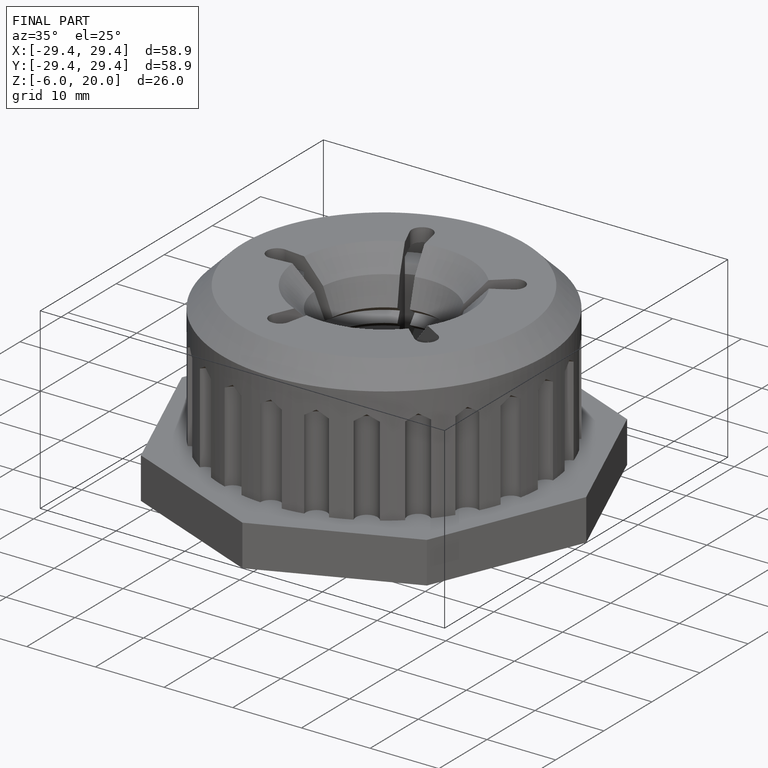
[diagram: finished part — iso view with bounding-box wireframe]
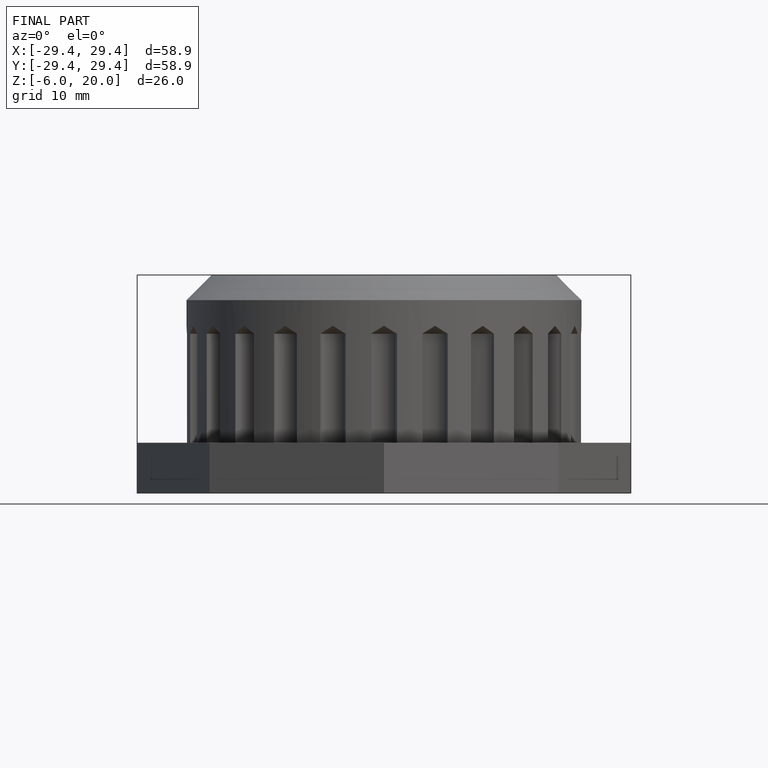
[diagram: finished part — front view with bounding-box wireframe]
